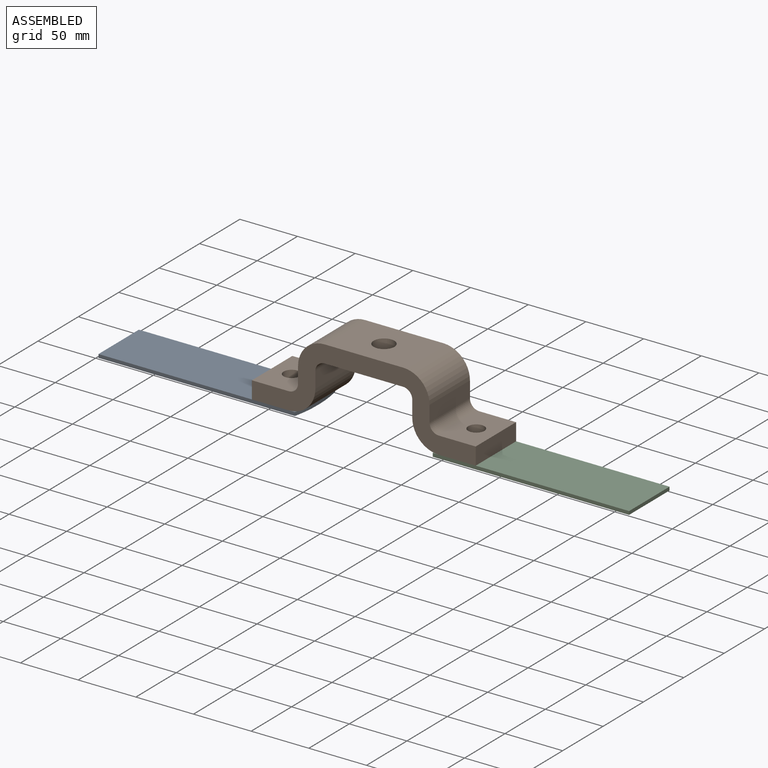
[diagram: assembled view]
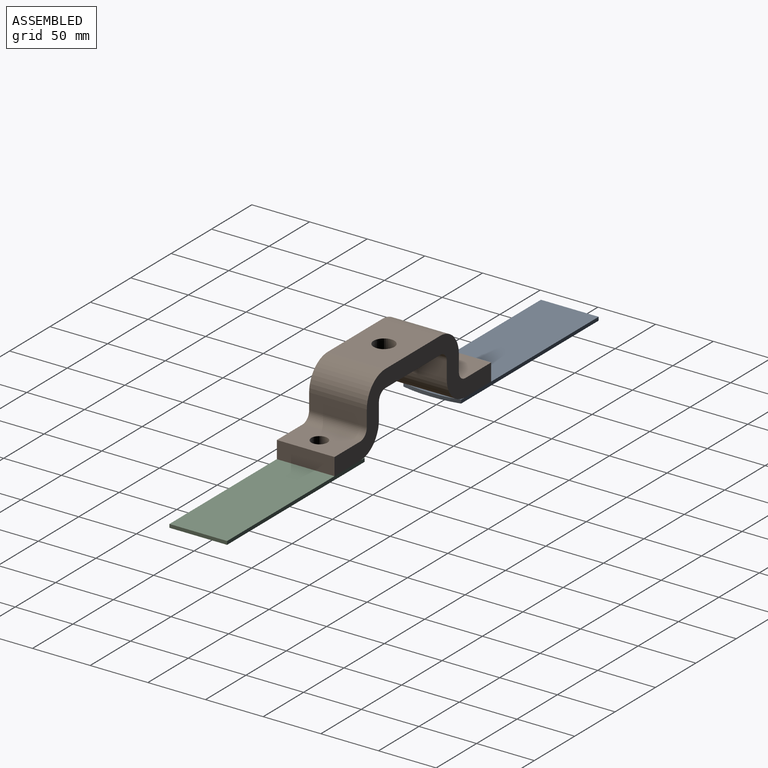
[diagram: assembled view, second angle]
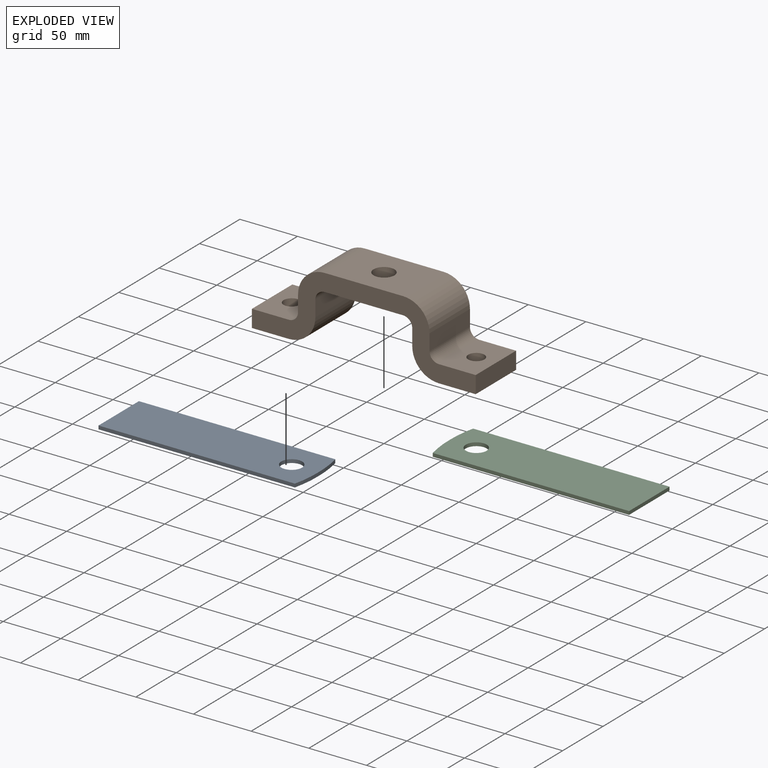
[diagram: exploded view]
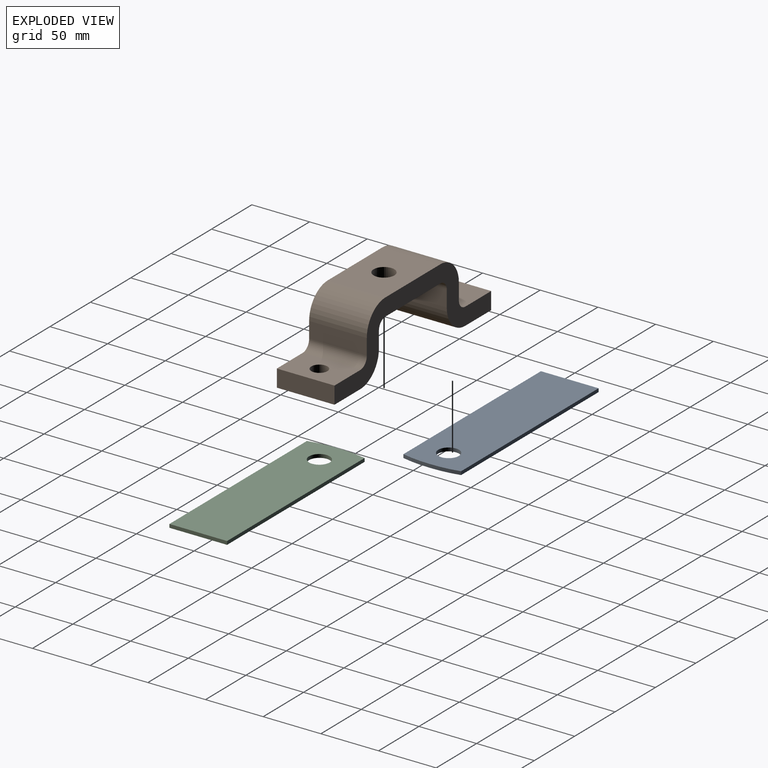
[diagram: exploded view, second angle]
ASSEMBLY  parts=3 mates=2
PART A: 8 faces, bbox 50x173x3 mm
  f0: cylinder r=104.07mm len=25mm, axis (0,0,-1), area 75.6mm2, adj f1,f5,f6,f7
  f1: cylinder r=104.07mm len=25mm, axis (0,0,-1), area 75.6mm2, adj f0,f2,f6,f7
  f2: plane 170.26x3mm, normal (-1,0,0), area 510.8mm2, adj f1,f3,f6,f7
  f3: plane 50x3mm, normal (0,-1,0), area 150mm2, adj f2,f5,f6,f7
  f4: cylinder r=9mm len=18mm, axis (0,0,-1), area 169.6mm2, adj f6,f7
  f5: plane 170.26x3mm, normal (1,0,0), area 510.8mm2, adj f0,f3,f6,f7
  f6: plane 173.01x50mm, normal (0,0,1), area 8352.6mm2, adj f0,f1,f2,f3,f4,f5
  f7: plane 173.01x50mm, normal (0,0,-1), area 8352.6mm2, adj f0,f1,f2,f3,f4,f5
PART B: 25 faces, bbox 194x50x60 mm
  f0: plane 68x50mm, normal (0,0,-1), area 3145.5mm2, adj f1,f19,f20,f21,f22
  f1: cylinder r=8mm len=50mm, axis (0,1,0), area 628.3mm2, adj f0,f2,f20,f21
  f2: plane 50x14mm, normal (-1,0,0), area 700mm2, adj f1,f3,f20,f21
  f3: cylinder r=23mm len=50mm, axis (0,1,0), area 1806.4mm2, adj f2,f4,f20,f21
  f4: plane 50x32mm, normal (0,0,-1), area 1446.1mm2, adj f3,f5,f20,f21,f24
  f5: plane 50x15mm, normal (1,0,0), area 750mm2, adj f4,f6,f20,f21
  f6: plane 50x32mm, normal (0,0,1), area 1446.1mm2, adj f5,f7,f20,f21,f24
  f7: cylinder r=8mm len=50mm, axis (0,1,0), area 628.3mm2, adj f6,f8,f20,f21
  f8: plane 50x14mm, normal (1,0,0), area 700mm2, adj f7,f9,f20,f21
  f9: cylinder r=23mm len=50mm, axis (0,1,0), area 1806.4mm2, adj f8,f10,f20,f21
  f10: plane 68x50mm, normal (0,0,1), area 3145.5mm2, adj f9,f11,f20,f21,f22
  f11: cylinder r=23mm len=50mm, axis (0,1,0), area 1806.4mm2, adj f10,f12,f20,f21
  f12: plane 50x14mm, normal (-1,0,0), area 700mm2, adj f11,f13,f20,f21
  f13: cylinder r=8mm len=50mm, axis (0,1,0), area 628.3mm2, adj f12,f14,f20,f21
  f14: plane 50x32mm, normal (0,0,1), area 1446.1mm2, adj f13,f15,f20,f21,f23
  f15: plane 50x15mm, normal (-1,0,0), area 750mm2, adj f14,f16,f20,f21
  f16: plane 50x32mm, normal (0,0,-1), area 1446.1mm2, adj f15,f17,f20,f21,f23
  f17: cylinder r=23mm len=50mm, axis (0,1,0), area 1806.4mm2, adj f16,f18,f20,f21
  f18: plane 50x14mm, normal (1,0,0), area 700mm2, adj f17,f19,f20,f21
  f19: cylinder r=8mm len=50mm, axis (0,1,0), area 628.3mm2, adj f0,f18,f20,f21
  f20: plane 194x60mm, normal (0,-1,0), area 3860.8mm2, adj f0,f1,f2,f3,f4,f5,f6,f7
  f21: plane 194x60mm, normal (0,1,0), area 3860.8mm2, adj f0,f1,f2,f3,f4,f5,f6,f7
  f22: cylinder r=9mm len=18mm, axis (0,0,-1), area 848.2mm2, adj f0,f10
  f23: cylinder r=7mm len=15mm, axis (0,0,-1), area 659.7mm2, adj f14,f16
  f24: cylinder r=7mm len=15mm, axis (0,0,-1), area 659.7mm2, adj f4,f6
PART C: same geometry as A
PLACE A rot(axis=(0,0,-1),90deg) t=(-171.07,90.93,-54.46)mm
PLACE B t=(-38.07,90.93,-51.46)mm
PLACE C rot(axis=(0,0,1),90deg) t=(288.93,40.93,-54.46)mm
MATE revolute A.f4 <-> B.f23  axis (0,0,1) through (-21.07,65.93,-51.46)mm
MATE revolute C.f4 <-> B.f24  axis (0,0,1) through (138.93,65.93,-51.46)mm
